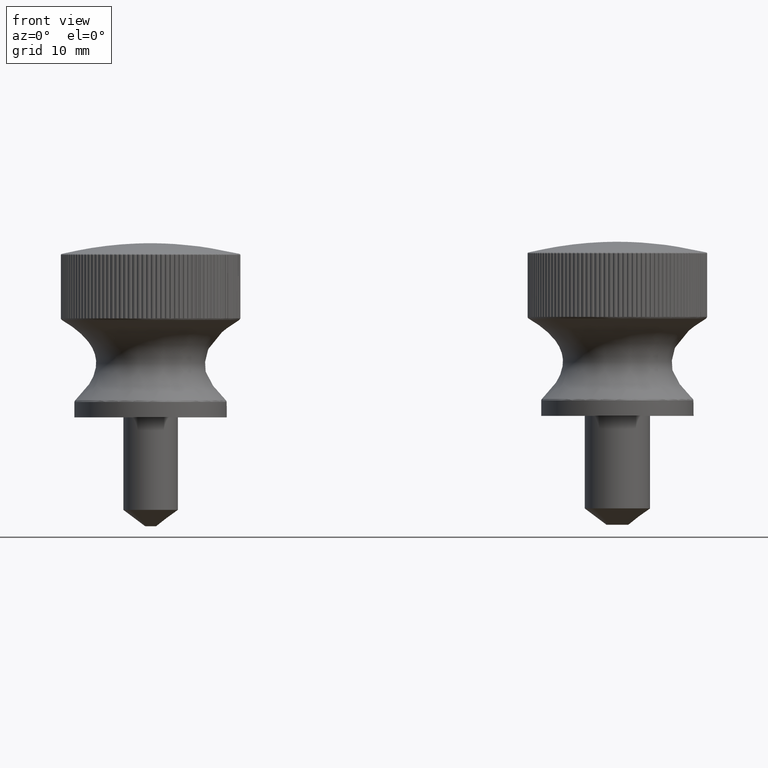
[diagram: clean part render]
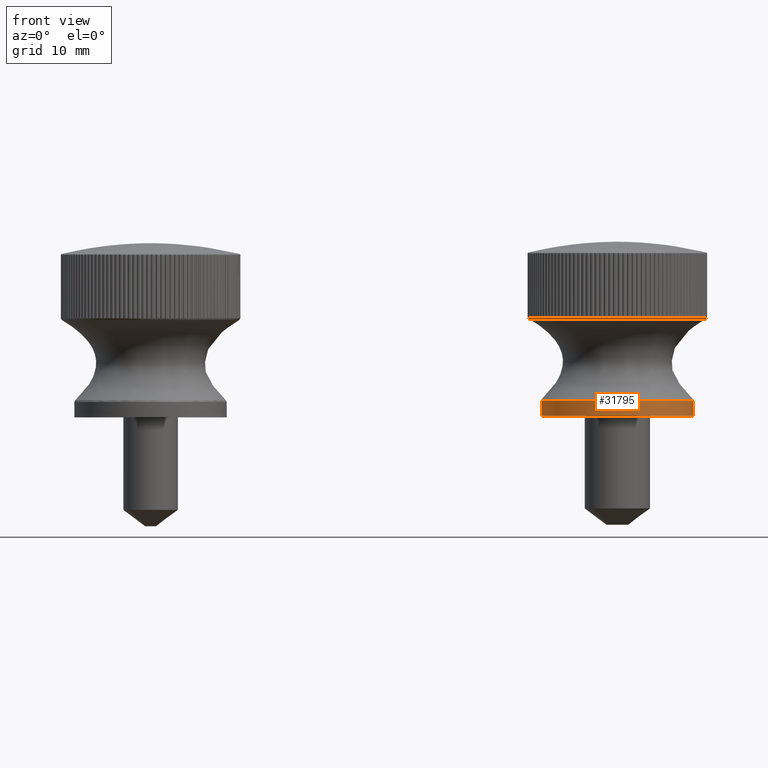
[diagram: same view with one face highlighted and labeled with its STEP entity id]
A machine part, front view. The second image highlights one B-rep face of the part: STEP entity #31795.
In plain terms, the highlighted cylindrical surface (bore or boss wall) has radius 7 mm, axis along (0, 0, 1).
Its self-contained STEP definition (entity closure, byte-faithful):
#3394=B_SPLINE_CURVE_WITH_KNOTS('',3,(#60861,#60862,#60863,#60864,#60865,
#60866,#60867,#60868,#60869,#60870),.UNSPECIFIED.,.T.,.F.,(4,1,1,1,1,1,
1,4),(-6.28318530717959,-5.38558740615393,-4.48798950512828,-3.59039160410262,
-2.69279370307697,-1.79519580205131,-0.897597901025655,0.),
 .UNSPECIFIED.);
#5576=CYLINDRICAL_SURFACE('',#34821,7.);
#6063=FACE_BOUND('',#9344,.T.);
#7159=FACE_OUTER_BOUND('',#9343,.T.);
#9343=EDGE_LOOP('',(#25646));
#9344=EDGE_LOOP('',(#25647));
#11519=CIRCLE('',#34822,7.);
#14055=VERTEX_POINT('',#60859);
#14057=VERTEX_POINT('',#60974);
#18038=EDGE_CURVE('',#14055,#14055,#3394,.T.);
#18042=EDGE_CURVE('',#14057,#14057,#11519,.T.);
#25646=ORIENTED_EDGE('',*,*,#18042,.F.);
#25647=ORIENTED_EDGE('',*,*,#18038,.F.);
#31795=ADVANCED_FACE('',(#7159,#6063),#5576,.T.);
#34821=AXIS2_PLACEMENT_3D('',#60973,#41108,#41109);
#34822=AXIS2_PLACEMENT_3D('',#60975,#41110,#41111);
#41108=DIRECTION('center_axis',(0.,0.,1.));
#41109=DIRECTION('ref_axis',(-1.,0.,0.));
#41110=DIRECTION('center_axis',(0.,0.,-1.));
#41111=DIRECTION('ref_axis',(-1.,0.,0.));
#60859=CARTESIAN_POINT('',(-7.,-1.38777878078145E-15,1.41249663361676));
#60861=CARTESIAN_POINT('Ctrl Pts',(-7.00478266111144,0.0001438007916501,
1.41249663361676));
#60862=CARTESIAN_POINT('Ctrl Pts',(-7.00506480613703,-2.0883691370907,1.41249663361676));
#60863=CARTESIAN_POINT('Ctrl Pts',(-4.99751914754448,-6.26836587127018,
1.41249663361676));
#60864=CARTESIAN_POINT('Ctrl Pts',(1.78199131951967,-7.8083750001124,1.41249663361676));
#60865=CARTESIAN_POINT('Ctrl Pts',(7.22314609309884,-3.47818575182502,1.41249663361676));
#60866=CARTESIAN_POINT('Ctrl Pts',(7.21596664615764,3.47474926270844,1.41249663361676));
#60867=CARTESIAN_POINT('Ctrl Pts',(1.78420728065221,7.81684498456431,1.41249663361676));
#60868=CARTESIAN_POINT('Ctrl Pts',(-4.99582627739093,6.26271175602392,1.41249663361676));
#60869=CARTESIAN_POINT('Ctrl Pts',(-7.00450051608585,2.088656738674,1.41249663361676));
#60870=CARTESIAN_POINT('Ctrl Pts',(-7.00478266111144,0.0001438007916501,
1.41249663361676));
#60973=CARTESIAN_POINT('Origin',(0.,0.,0.));
#60974=CARTESIAN_POINT('',(7.,8.57252759403147E-16,0.));
#60975=CARTESIAN_POINT('Origin',(0.,0.,0.));